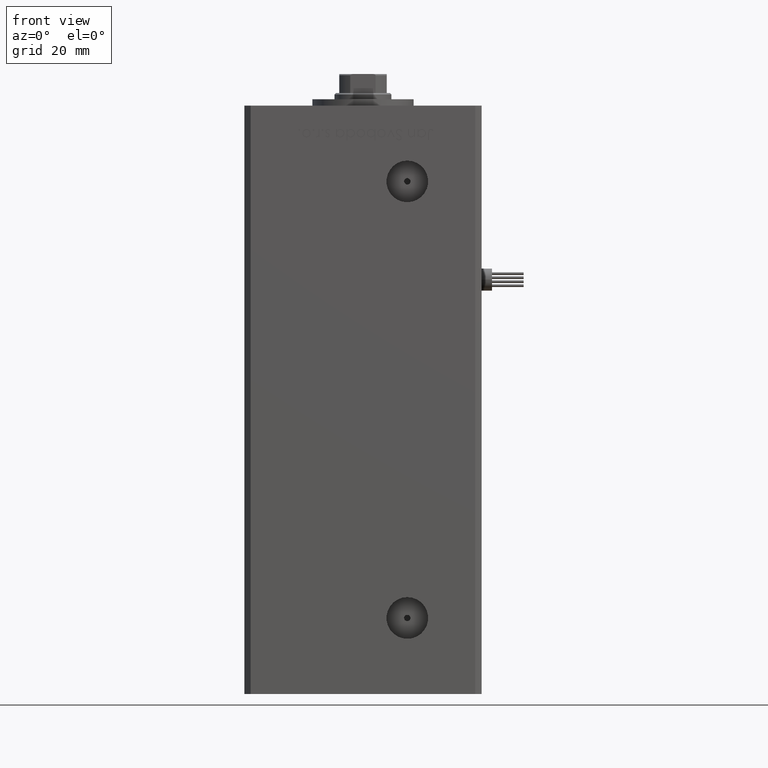
[diagram: clean part render]
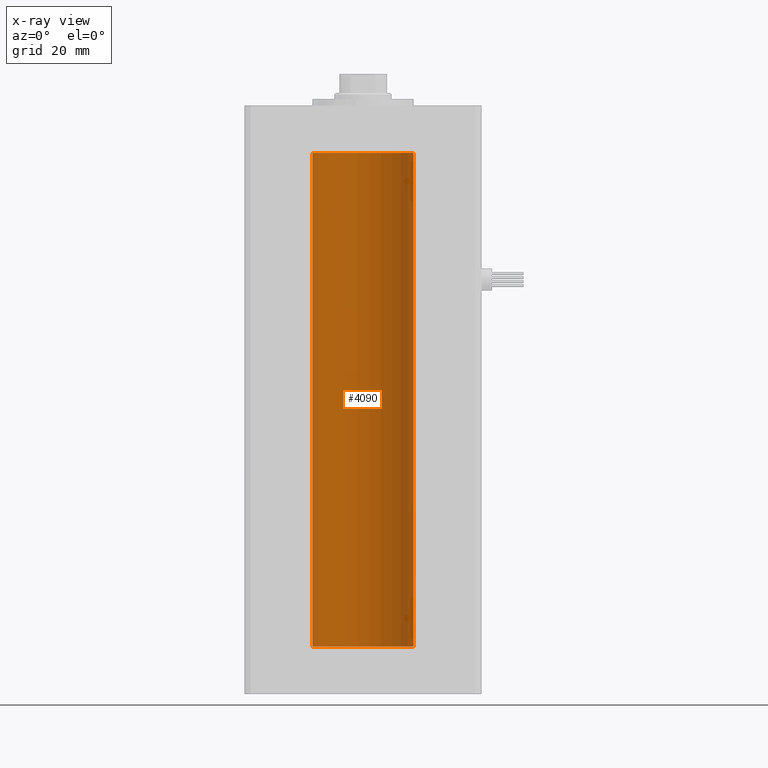
[diagram: x-ray — body ghosted, one internal face saturated and labeled with its STEP entity id]
A machine part, front view, then the same camera in x-ray: the body is ghosted and one INTERNAL B-rep face — a face not visible from any outside direction — is saturated and labeled: STEP entity #4090.
In plain terms, the highlighted cylindrical surface (partial cylindrical patch) has radius 16 mm, axis along (-0, -0, -1).
Its self-contained STEP definition (entity closure, byte-faithful):
#1585 = EDGE_CURVE ( 'NONE', #44652, #32233, #30839, .T. ) ;
#4090 = ADVANCED_FACE ( 'NONE', ( #29658 ), #45875, .F. ) ;
#4416 = EDGE_CURVE ( 'NONE', #32929, #51755, #14846, .T. ) ;
#7143 = CARTESIAN_POINT ( 'NONE',  ( -16.00000000000000000, 0.000000000000000000, 0.000000000000000000 ) ) ;
#7328 = CARTESIAN_POINT ( 'NONE',  ( -16.00000000000000000, 0.000000000000000000, 156.0000000000000000 ) ) ;
#8104 = DIRECTION ( 'NONE',  ( -0.000000000000000000, 0.000000000000000000, 1.000000000000000000 ) ) ;
#11504 = LINE ( 'NONE', #7328, #42367 ) ;
#11549 = ORIENTED_EDGE ( 'NONE', *, *, #1585, .T. ) ;
#12839 = DIRECTION ( 'NONE',  ( 1.000000000000000000, 0.000000000000000000, 0.000000000000000000 ) ) ;
#14846 = CIRCLE ( 'NONE', #46065, 16.00000000000000000 ) ;
#18842 = ORIENTED_EDGE ( 'NONE', *, *, #42823, .T. ) ;
#20148 = DIRECTION ( 'NONE',  ( -0.000000000000000000, -0.000000000000000000, -1.000000000000000000 ) ) ;
#20194 = DIRECTION ( 'NONE',  ( -1.000000000000000000, 0.000000000000000000, 0.000000000000000000 ) ) ;
#20649 = VECTOR ( 'NONE', #35278, 1000.000000000000000 ) ;
#21218 = CARTESIAN_POINT ( 'NONE',  ( 0.000000000000000000, 0.000000000000000000, 0.000000000000000000 ) ) ;
#21763 = DIRECTION ( 'NONE',  ( -0.000000000000000000, 0.000000000000000000, 1.000000000000000000 ) ) ;
#25387 = CARTESIAN_POINT ( 'NONE',  ( 0.000000000000000000, 0.000000000000000000, 156.0000000000000000 ) ) ;
#25659 = DIRECTION ( 'NONE',  ( 1.000000000000000000, 0.000000000000000000, 0.000000000000000000 ) ) ;
#27218 = ORIENTED_EDGE ( 'NONE', *, *, #29084, .F. ) ;
#27335 = AXIS2_PLACEMENT_3D ( 'NONE', #46689, #38315, #20194 ) ;
#27706 = LINE ( 'NONE', #40284, #20649 ) ;
#29084 = EDGE_CURVE ( 'NONE', #44652, #32929, #27706, .T. ) ;
#29658 = FACE_OUTER_BOUND ( 'NONE', #47751, .T. ) ;
#30839 = CIRCLE ( 'NONE', #51299, 16.00000000000000000 ) ;
#32233 = VERTEX_POINT ( 'NONE', #35808 ) ;
#32929 = VERTEX_POINT ( 'NONE', #50218 ) ;
#35278 = DIRECTION ( 'NONE',  ( -0.000000000000000000, -0.000000000000000000, -1.000000000000000000 ) ) ;
#35808 = CARTESIAN_POINT ( 'NONE',  ( -16.00000000000000000, 0.000000000000000000, 156.0000000000000000 ) ) ;
#38315 = DIRECTION ( 'NONE',  ( -0.000000000000000000, -0.000000000000000000, -1.000000000000000000 ) ) ;
#39649 = ORIENTED_EDGE ( 'NONE', *, *, #4416, .F. ) ;
#40284 = CARTESIAN_POINT ( 'NONE',  ( 16.00000000000000000, 1.959434878635765131E-15, 156.0000000000000000 ) ) ;
#42367 = VECTOR ( 'NONE', #20148, 1000.000000000000000 ) ;
#42823 = EDGE_CURVE ( 'NONE', #32233, #51755, #11504, .T. ) ;
#44652 = VERTEX_POINT ( 'NONE', #47509 ) ;
#45875 = CYLINDRICAL_SURFACE ( 'NONE', #27335, 16.00000000000000000 ) ;
#46065 = AXIS2_PLACEMENT_3D ( 'NONE', #21218, #21763, #12839 ) ;
#46689 = CARTESIAN_POINT ( 'NONE',  ( 0.000000000000000000, 0.000000000000000000, 156.0000000000000000 ) ) ;
#47509 = CARTESIAN_POINT ( 'NONE',  ( 16.00000000000000000, 1.959434878635765131E-15, 156.0000000000000000 ) ) ;
#47751 = EDGE_LOOP ( 'NONE', ( #27218, #11549, #18842, #39649 ) ) ;
#50218 = CARTESIAN_POINT ( 'NONE',  ( 16.00000000000000000, 1.959434878635765131E-15, 0.000000000000000000 ) ) ;
#51299 = AXIS2_PLACEMENT_3D ( 'NONE', #25387, #8104, #25659 ) ;
#51755 = VERTEX_POINT ( 'NONE', #7143 ) ;